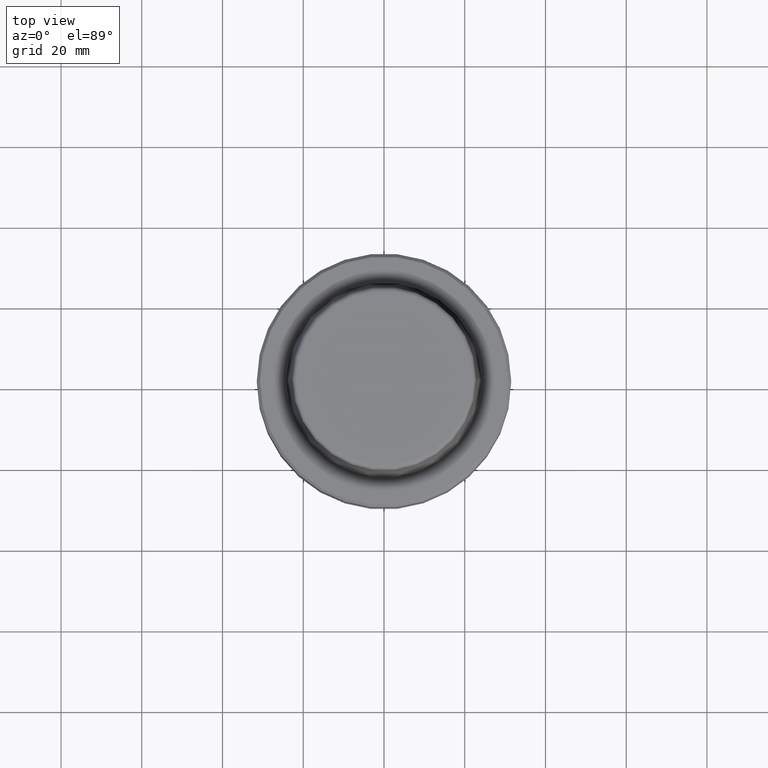
[diagram: clean part render]
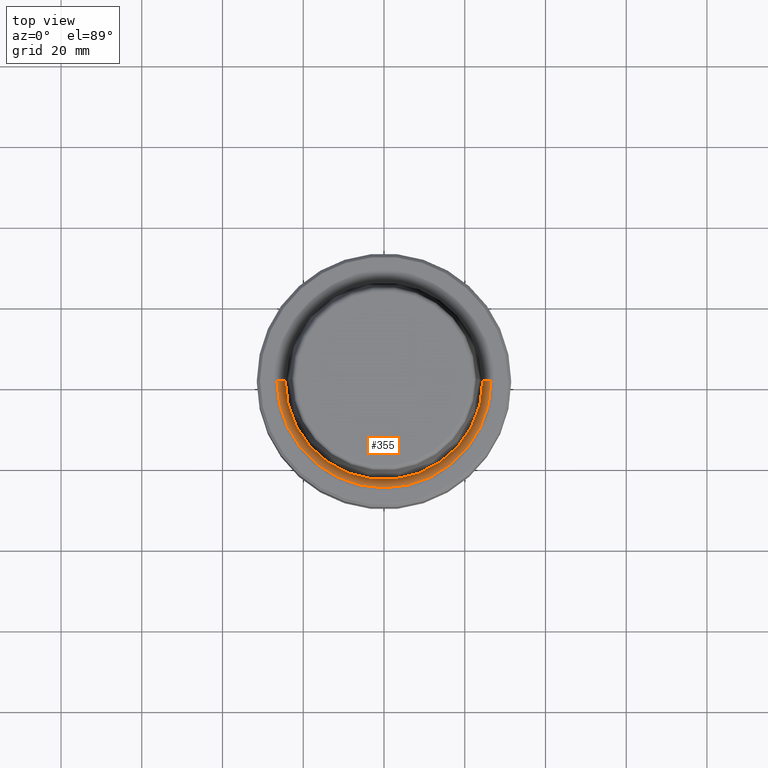
[diagram: same view with one face highlighted and labeled with its STEP entity id]
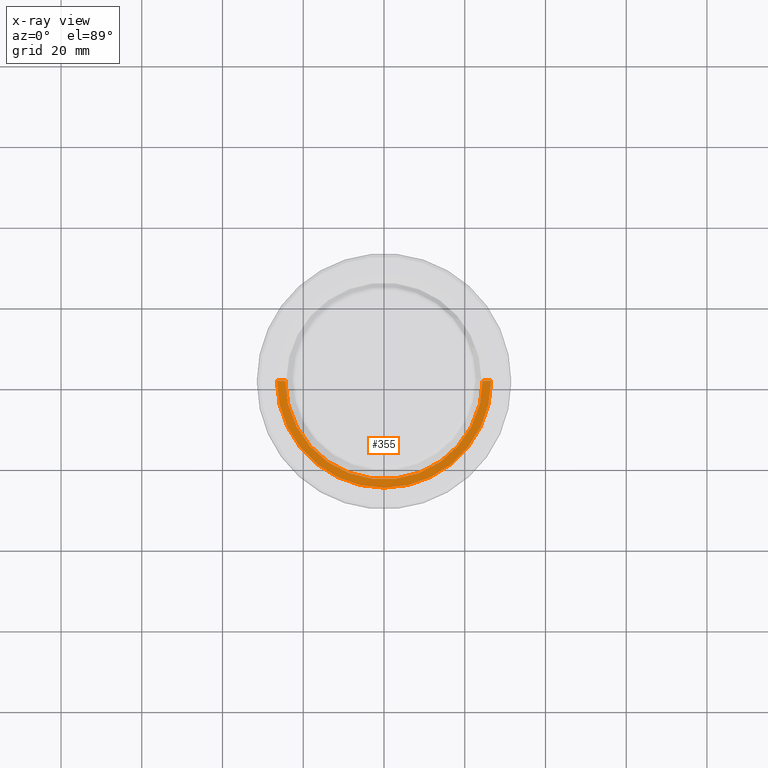
[diagram: x-ray of the same camera — body ghosted, the highlighted face saturated]
A machine part, top view. The second image highlights one B-rep face of the part: STEP entity #355.
The next image is the same camera in x-ray: the body ghosted, the highlighted face saturated — about 0% of this face is hidden behind the body in this view.
In plain terms, the highlighted conical surface has half-angle 80 deg.
Its self-contained STEP definition (entity closure, byte-faithful):
#10 = ORIENTED_EDGE ( 'NONE', *, *, #587, .T. ) ;
#11 = CARTESIAN_POINT ( 'NONE',  ( -26.52499999999999900, 3.248375634738354300E-015, 0.0000000000000000000 ) ) ;
#23 = AXIS2_PLACEMENT_3D ( 'NONE', #293, #981, #388 ) ;
#114 = VERTEX_POINT ( 'NONE', #1142 ) ;
#139 = CARTESIAN_POINT ( 'NONE',  ( -26.52499999999999900, 3.248375634738354300E-015, 0.0000000000000000000 ) ) ;
#167 = EDGE_CURVE ( 'NONE', #114, #607, #680, .T. ) ;
#226 = FACE_OUTER_BOUND ( 'NONE', #288, .T. ) ;
#247 = ORIENTED_EDGE ( 'NONE', *, *, #167, .F. ) ;
#248 = CARTESIAN_POINT ( 'NONE',  ( 24.47682408883346700, 0.0000000000000000000, -0.3611486743758107700 ) ) ;
#283 = LINE ( 'NONE', #11, #972 ) ;
#288 = EDGE_LOOP ( 'NONE', ( #247, #842, #10, #941 ) ) ;
#289 = DIRECTION ( 'NONE',  ( 0.9848077530122074700, 0.0000000000000000000, 0.1736481776669334700 ) ) ;
#293 = CARTESIAN_POINT ( 'NONE',  ( 0.0000000000000000000, 0.0000000000000000000, -0.3611486743758107700 ) ) ;
#355 = ADVANCED_FACE ( 'NONE', ( #226 ), #453, .F. ) ;
#388 = DIRECTION ( 'NONE',  ( 1.000000000000000000, 0.0000000000000000000, 0.0000000000000000000 ) ) ;
#443 = CARTESIAN_POINT ( 'NONE',  ( 0.0000000000000000000, 0.0000000000000000000, 0.0000000000000000000 ) ) ;
#453 = CONICAL_SURFACE ( 'NONE', #673, 26.52499999999999900, 1.396263401595460500 ) ;
#461 = EDGE_CURVE ( 'NONE', #607, #625, #878, .T. ) ;
#534 = VERTEX_POINT ( 'NONE', #139 ) ;
#536 = DIRECTION ( 'NONE',  ( 1.000000000000000000, 0.0000000000000000000, 0.0000000000000000000 ) ) ;
#540 = CARTESIAN_POINT ( 'NONE',  ( 26.52499999999999900, 0.0000000000000000000, 0.0000000000000000000 ) ) ;
#587 = EDGE_CURVE ( 'NONE', #534, #625, #868, .T. ) ;
#607 = VERTEX_POINT ( 'NONE', #248 ) ;
#625 = VERTEX_POINT ( 'NONE', #540 ) ;
#673 = AXIS2_PLACEMENT_3D ( 'NONE', #729, #830, #933 ) ;
#675 = CARTESIAN_POINT ( 'NONE',  ( 26.52499999999999900, 0.0000000000000000000, 0.0000000000000000000 ) ) ;
#680 = CIRCLE ( 'NONE', #23, 24.47682408883346700 ) ;
#721 = VECTOR ( 'NONE', #289, 1000.000000000000200 ) ;
#729 = CARTESIAN_POINT ( 'NONE',  ( 0.0000000000000000000, 0.0000000000000000000, 0.0000000000000000000 ) ) ;
#802 = EDGE_CURVE ( 'NONE', #114, #534, #283, .T. ) ;
#830 = DIRECTION ( 'NONE',  ( -0.0000000000000000000, -0.0000000000000000000, 1.000000000000000000 ) ) ;
#842 = ORIENTED_EDGE ( 'NONE', *, *, #802, .T. ) ;
#868 = CIRCLE ( 'NONE', #1059, 26.52499999999999900 ) ;
#878 = LINE ( 'NONE', #675, #721 ) ;
#883 = DIRECTION ( 'NONE',  ( -0.9848077530122074700, 1.206041662501897100E-016, 0.1736481776669334700 ) ) ;
#933 = DIRECTION ( 'NONE',  ( 1.000000000000000000, 0.0000000000000000000, 0.0000000000000000000 ) ) ;
#941 = ORIENTED_EDGE ( 'NONE', *, *, #461, .F. ) ;
#972 = VECTOR ( 'NONE', #883, 1000.000000000000200 ) ;
#981 = DIRECTION ( 'NONE',  ( -0.0000000000000000000, -0.0000000000000000000, 1.000000000000000000 ) ) ;
#1059 = AXIS2_PLACEMENT_3D ( 'NONE', #443, #1123, #536 ) ;
#1123 = DIRECTION ( 'NONE',  ( -0.0000000000000000000, -0.0000000000000000000, 1.000000000000000000 ) ) ;
#1142 = CARTESIAN_POINT ( 'NONE',  ( -24.47682408883346700, 3.122961031053313900E-015, -0.3611486743758107700 ) ) ;